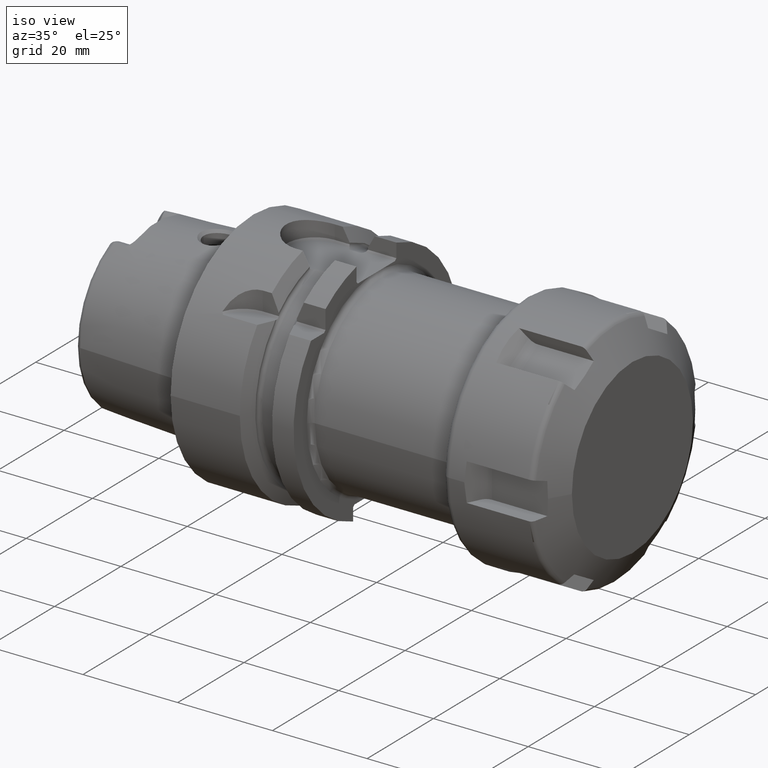
[diagram: clean part render]
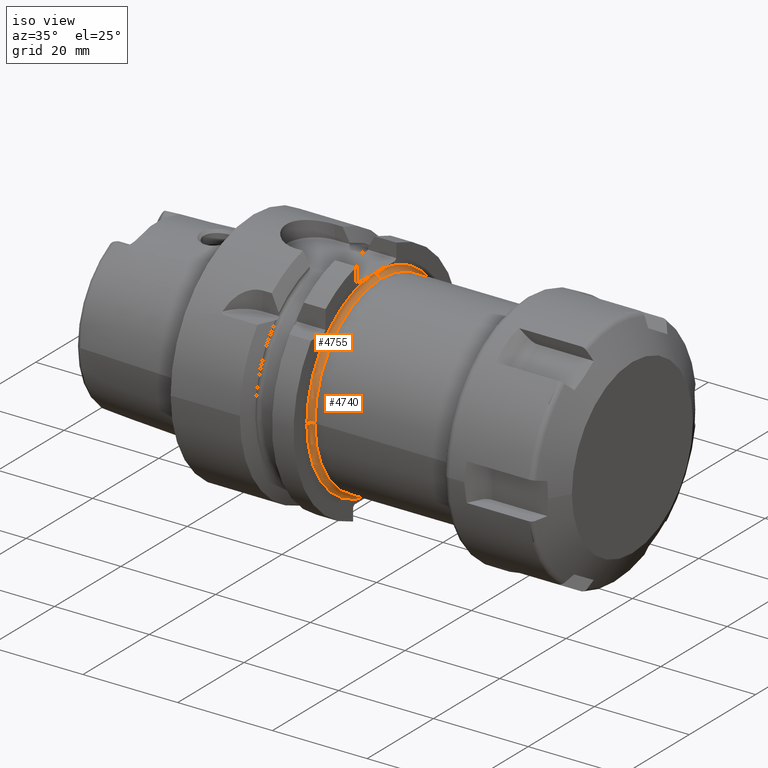
[diagram: same view with one multi-face feature highlighted, each face labeled with its STEP entity id]
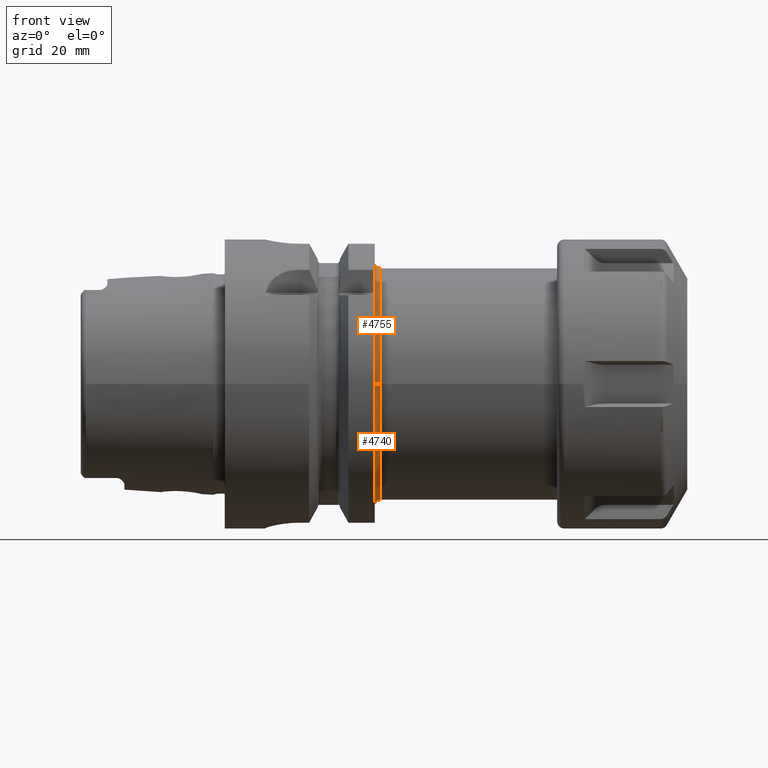
[diagram: same view with one multi-face feature highlighted, each face labeled with its STEP entity id]
A machine part, iso view. The highlighted faces form ONE feature: a constant-radius fillet chain: 2 tangent blend faces with common blend radius 1 mm. The faces share edges in the B-rep.
A second angle (front view) of the same feature is appended — it is thin or edge-on in the first view.
Their STEP definitions:
[1] entity #4755 (Torus):
#1392=CARTESIAN_POINT('',(2.595E1,0.E0,0.E0));
#1393=DIRECTION('',(1.E0,0.E0,0.E0));
#1394=DIRECTION('',(0.E0,-9.747321419568E-2,9.952381486430E-1));
#1395=AXIS2_PLACEMENT_3D('',#1392,#1393,#1394);
#1420=CARTESIAN_POINT('',(2.695E1,-2.1E1,0.E0));
#1421=DIRECTION('',(0.E0,0.E0,-1.E0));
#1422=DIRECTION('',(-1.E0,0.E0,0.E0));
#1423=AXIS2_PLACEMENT_3D('',#1420,#1421,#1422);
#1442=CARTESIAN_POINT('',(2.595501256275E1,-2.412010851248E-4,2.09E1));
#1443=CARTESIAN_POINT('',(2.595501229859E1,-2.279910461813E-1,2.09E1));
#1444=CARTESIAN_POINT('',(2.595422176300E1,-6.832774843918E-1,
2.090000070586E1));
#1445=CARTESIAN_POINT('',(2.595142362503E1,-1.367245985579E0,2.089999752947E1));
#1446=CARTESIAN_POINT('',(2.595E1,-1.820561193799E0,2.090000529398E1));
#1447=CARTESIAN_POINT('',(2.595E1,-2.046891040045E0,2.090000529398E1));
#1449=CARTESIAN_POINT('',(2.695E1,-2.423551572878E-4,2.099999999860E1));
#1450=DIRECTION('',(0.E0,-9.999999999334E-1,-1.154072177561E-5));
#1451=DIRECTION('',(-9.949874372465E-1,1.154072161498E-6,-9.999999860153E-2));
#1452=AXIS2_PLACEMENT_3D('',#1449,#1450,#1451);
#1941=CARTESIAN_POINT('',(2.695E1,0.E0,0.E0));
#1942=DIRECTION('',(1.E0,0.E0,0.E0));
#1943=DIRECTION('',(0.E0,-1.036332553160E-5,9.999999999463E-1));
#1944=AXIS2_PLACEMENT_3D('',#1941,#1942,#1943);
#3229=CARTESIAN_POINT('',(2.595E1,-2.1E1,-1.392638962858E-14));
#3231=VERTEX_POINT('',#3229);
#3233=CARTESIAN_POINT('',(2.595E1,-2.046937498109E0,2.090000112150E1));
#3234=VERTEX_POINT('',#3233);
#3235=CARTESIAN_POINT('',(2.695E1,-2.072665106320E-4,1.999999999893E1));
#3236=CARTESIAN_POINT('',(2.695E1,-2.E1,-1.332264919045E-14));
#3237=VERTEX_POINT('',#3235);
#3238=VERTEX_POINT('',#3236);
#3249=CARTESIAN_POINT('',(2.595501256275E1,-2.412010851263E-4,2.09E1));
#3250=VERTEX_POINT('',#3249);
#4741=CARTESIAN_POINT('',(2.695E1,0.E0,0.E0));
#4742=DIRECTION('',(1.E0,0.E0,0.E0));
#4743=DIRECTION('',(0.E0,1.485959642860E-3,-9.999988959614E-1));
#4744=AXIS2_PLACEMENT_3D('',#4741,#4742,#4743);
#4745=TOROIDAL_SURFACE('',#4744,2.1E1,1.E0);
#4746=ORIENTED_EDGE('',*,*,#4693,.F.);
#4748=ORIENTED_EDGE('',*,*,#4747,.F.);
#4749=ORIENTED_EDGE('',*,*,#4733,.T.);
#4751=ORIENTED_EDGE('',*,*,#4750,.T.);
#4752=ORIENTED_EDGE('',*,*,#4727,.F.);
#4753=EDGE_LOOP('',(#4746,#4748,#4749,#4751,#4752));
#4754=FACE_OUTER_BOUND('',#4753,.F.);
#4755=ADVANCED_FACE('',(#4754),#4745,.F.);
#1396=CIRCLE('',#1395,2.1E1);
#1424=CIRCLE('',#1423,1.E0);
#1448=B_SPLINE_CURVE_WITH_KNOTS('',3,(#1442,#1443,#1444,#1445,#1446,#1447),
.UNSPECIFIED.,.F.,.F.,(4,1,1,4),(0.E0,3.333333333333E-1,6.666666666667E-1,1.E0),
.UNSPECIFIED.);
#1453=CIRCLE('',#1452,1.E0);
#1945=CIRCLE('',#1944,2.E1);
#4693=EDGE_CURVE('',#3234,#3231,#1396,.T.);
#4727=EDGE_CURVE('',#3231,#3238,#1424,.T.);
#4733=EDGE_CURVE('',#3250,#3237,#1453,.T.);
#4747=EDGE_CURVE('',#3250,#3234,#1448,.T.);
#4750=EDGE_CURVE('',#3237,#3238,#1945,.T.);
[2] entity #4740 (Torus):
#1363=CARTESIAN_POINT('',(2.595E1,0.E0,0.E0));
#1364=DIRECTION('',(1.E0,0.E0,0.E0));
#1365=DIRECTION('',(0.E0,-1.E0,0.E0));
#1366=AXIS2_PLACEMENT_3D('',#1363,#1364,#1365);
#1413=CARTESIAN_POINT('',(2.595E1,2.046891837585E0,-2.090000526985E1));
#1414=CARTESIAN_POINT('',(2.595E1,1.591057337493E0,-2.090000526985E1));
#1415=CARTESIAN_POINT('',(2.595527956192E1,6.801775229757E-1,
-2.089999799695E1));
#1416=CARTESIAN_POINT('',(2.595527955866E1,-6.801691232291E-1,
-2.089999910588E1));
#1417=CARTESIAN_POINT('',(2.595E1,-1.591084400894E0,-2.090000342163E1));
#1418=CARTESIAN_POINT('',(2.595E1,-2.046918667963E0,-2.090000342163E1));
#1420=CARTESIAN_POINT('',(2.695E1,-2.1E1,0.E0));
#1421=DIRECTION('',(0.E0,0.E0,-1.E0));
#1422=DIRECTION('',(-1.E0,0.E0,0.E0));
#1423=AXIS2_PLACEMENT_3D('',#1420,#1421,#1422);
#1425=CARTESIAN_POINT('',(2.695E1,0.E0,0.E0));
#1426=DIRECTION('',(1.E0,0.E0,0.E0));
#1427=DIRECTION('',(0.E0,-1.E0,0.E0));
#1428=AXIS2_PLACEMENT_3D('',#1425,#1426,#1427);
#1430=CARTESIAN_POINT('',(2.595E1,2.046918968992E0,2.090000343577E1));
#1431=CARTESIAN_POINT('',(2.595E1,1.820550435681E0,2.090000343577E1));
#1432=CARTESIAN_POINT('',(2.595142412919E1,1.367106631742E0,2.089999839664E1));
#1433=CARTESIAN_POINT('',(2.595422294537E1,6.829669299483E-1,2.090000045810E1));
#1434=CARTESIAN_POINT('',(2.595501282698E1,2.275652462710E-1,2.09E1));
#1435=CARTESIAN_POINT('',(2.595501256275E1,-2.412010851248E-4,2.09E1));
#1437=CARTESIAN_POINT('',(2.595E1,0.E0,0.E0));
#1438=DIRECTION('',(-1.E0,0.E0,0.E0));
#1439=DIRECTION('',(0.E0,9.747448129785E-2,9.952380245427E-1));
#1440=AXIS2_PLACEMENT_3D('',#1437,#1438,#1439);
#1449=CARTESIAN_POINT('',(2.695E1,-2.423551572878E-4,2.099999999860E1));
#1450=DIRECTION('',(0.E0,-9.999999999334E-1,-1.154072177561E-5));
#1451=DIRECTION('',(-9.949874372465E-1,1.154072161498E-6,-9.999999860153E-2));
#1452=AXIS2_PLACEMENT_3D('',#1449,#1450,#1451);
#1946=CARTESIAN_POINT('',(2.695E1,0.E0,0.E0));
#1947=DIRECTION('',(1.E0,0.E0,0.E0));
#1948=DIRECTION('',(0.E0,1.E0,0.E0));
#1949=AXIS2_PLACEMENT_3D('',#1946,#1947,#1948);
#3229=CARTESIAN_POINT('',(2.595E1,-2.1E1,-1.392638962858E-14));
#3230=CARTESIAN_POINT('',(2.595E1,-2.046962783693E0,-2.089999864503E1));
#3231=VERTEX_POINT('',#3229);
#3232=VERTEX_POINT('',#3230);
#3235=CARTESIAN_POINT('',(2.695E1,-2.072665106320E-4,1.999999999893E1));
#3236=CARTESIAN_POINT('',(2.695E1,-2.E1,-1.332264919045E-14));
#3237=VERTEX_POINT('',#3235);
#3238=VERTEX_POINT('',#3236);
#3239=CARTESIAN_POINT('',(2.695E1,2.E1,1.133107779530E-14));
#3240=VERTEX_POINT('',#3239);
#3241=CARTESIAN_POINT('',(2.595E1,2.046918968992E0,2.090000343577E1));
#3242=VERTEX_POINT('',#3241);
#3243=CARTESIAN_POINT('',(2.595E1,2.046891837585E0,-2.090000526985E1));
#3244=VERTEX_POINT('',#3243);
#3249=CARTESIAN_POINT('',(2.595501256275E1,-2.412010851263E-4,2.09E1));
#3250=VERTEX_POINT('',#3249);
#4720=CARTESIAN_POINT('',(2.695E1,0.E0,0.E0));
#4721=DIRECTION('',(1.E0,0.E0,0.E0));
#4722=DIRECTION('',(0.E0,9.999926110723E-1,-3.844190531823E-3));
#4723=AXIS2_PLACEMENT_3D('',#4720,#4721,#4722);
#4724=TOROIDAL_SURFACE('',#4723,2.1E1,1.E0);
#4725=ORIENTED_EDGE('',*,*,#4639,.T.);
#4726=ORIENTED_EDGE('',*,*,#4673,.F.);
#4728=ORIENTED_EDGE('',*,*,#4727,.T.);
#4730=ORIENTED_EDGE('',*,*,#4729,.T.);
#4732=ORIENTED_EDGE('',*,*,#4731,.T.);
#4734=ORIENTED_EDGE('',*,*,#4733,.F.);
#4736=ORIENTED_EDGE('',*,*,#4735,.F.);
#4737=ORIENTED_EDGE('',*,*,#4703,.T.);
#4738=EDGE_LOOP('',(#4725,#4726,#4728,#4730,#4732,#4734,#4736,#4737));
#4739=FACE_OUTER_BOUND('',#4738,.F.);
#4740=ADVANCED_FACE('',(#4739),#4724,.F.);
#1367=CIRCLE('',#1366,2.1E1);
#1419=B_SPLINE_CURVE_WITH_KNOTS('',3,(#1413,#1414,#1415,#1416,#1417,#1418),
.UNSPECIFIED.,.F.,.F.,(4,1,1,4),(0.E0,3.333333333333E-1,6.666666666667E-1,1.E0),
.UNSPECIFIED.);
#1424=CIRCLE('',#1423,1.E0);
#1429=CIRCLE('',#1428,2.E1);
#1436=B_SPLINE_CURVE_WITH_KNOTS('',3,(#1430,#1431,#1432,#1433,#1434,#1435),
.UNSPECIFIED.,.F.,.F.,(4,1,1,4),(0.E0,3.333333333333E-1,6.666666666667E-1,1.E0),
.UNSPECIFIED.);
#1441=CIRCLE('',#1440,2.1E1);
#1453=CIRCLE('',#1452,1.E0);
#1950=CIRCLE('',#1949,2.E1);
#4639=EDGE_CURVE('',#3244,#3232,#1419,.T.);
#4673=EDGE_CURVE('',#3231,#3232,#1367,.T.);
#4703=EDGE_CURVE('',#3242,#3244,#1441,.T.);
#4727=EDGE_CURVE('',#3231,#3238,#1424,.T.);
#4729=EDGE_CURVE('',#3238,#3240,#1429,.T.);
#4731=EDGE_CURVE('',#3240,#3237,#1950,.T.);
#4733=EDGE_CURVE('',#3250,#3237,#1453,.T.);
#4735=EDGE_CURVE('',#3242,#3250,#1436,.T.);